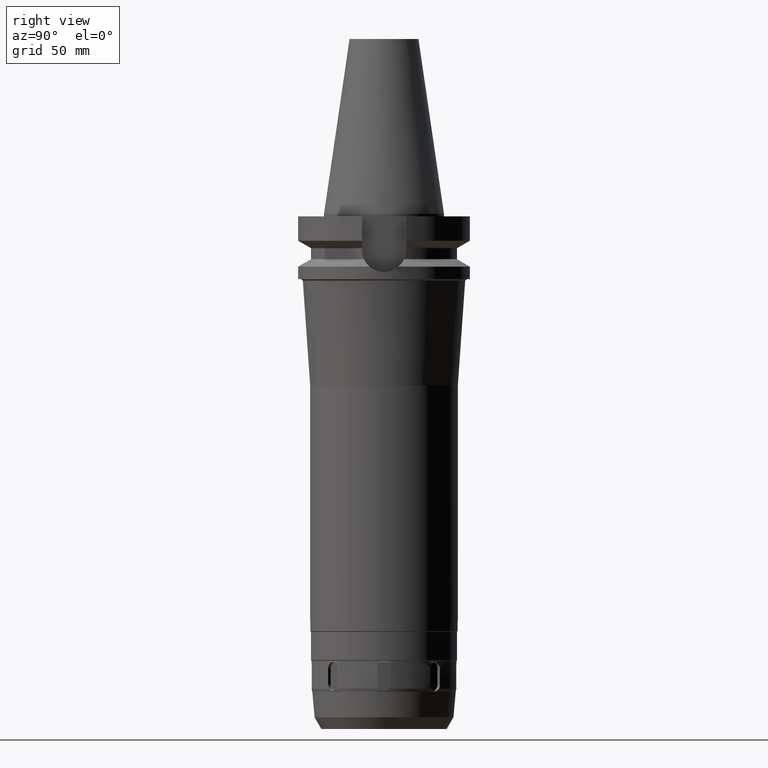
[diagram: clean part render]
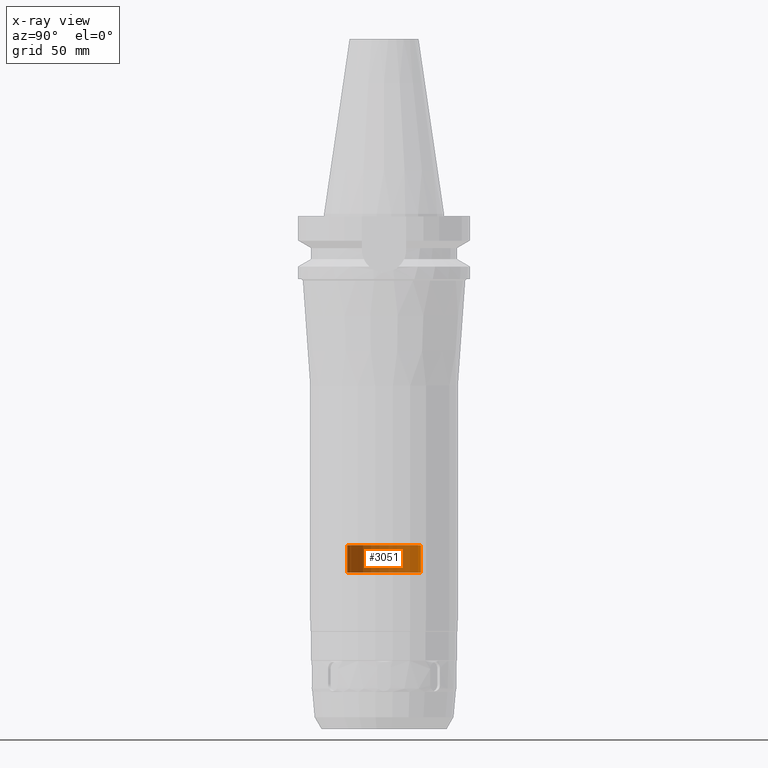
[diagram: x-ray — body ghosted, one internal face saturated and labeled with its STEP entity id]
A machine part, right view, then the same camera in x-ray: the body is ghosted and one INTERNAL B-rep face — a face not visible from any outside direction — is saturated and labeled: STEP entity #3051.
In plain terms, the highlighted cylindrical surface (partial cylindrical patch) has radius 21.5 mm, axis along (0, 0, -1).
Its self-contained STEP definition (entity closure, byte-faithful):
#178=CARTESIAN_POINT('',(0.E0,2.717368782628E-14,-1.93E2));
#179=DIRECTION('',(0.E0,0.E0,1.E0));
#180=DIRECTION('',(0.E0,1.E0,0.E0));
#181=AXIS2_PLACEMENT_3D('',#178,#179,#180);
#202=DIRECTION('',(0.E0,0.E0,1.E0));
#203=VECTOR('',#202,1.6E1);
#204=CARTESIAN_POINT('',(0.E0,2.15E1,-2.09E2));
#205=LINE('',#204,#203);
#209=DIRECTION('',(0.E0,0.E0,1.E0));
#210=VECTOR('',#209,1.6E1);
#211=CARTESIAN_POINT('',(0.E0,-2.15E1,-2.09E2));
#212=LINE('',#211,#210);
#216=CARTESIAN_POINT('',(0.E0,2.717368782628E-14,-2.09E2));
#217=DIRECTION('',(0.E0,0.E0,-1.E0));
#218=DIRECTION('',(0.E0,-1.E0,0.E0));
#219=AXIS2_PLACEMENT_3D('',#216,#217,#218);
#2515=CARTESIAN_POINT('',(0.E0,-2.15E1,-1.93E2));
#2516=CARTESIAN_POINT('',(0.E0,2.15E1,-1.93E2));
#2517=VERTEX_POINT('',#2515);
#2518=VERTEX_POINT('',#2516);
#2519=CARTESIAN_POINT('',(0.E0,2.15E1,-2.09E2));
#2520=VERTEX_POINT('',#2519);
#2521=CARTESIAN_POINT('',(0.E0,-2.15E1,-2.09E2));
#2522=VERTEX_POINT('',#2521);
#3039=CARTESIAN_POINT('',(0.E0,2.717368782628E-14,1.2189E2));
#3040=DIRECTION('',(0.E0,0.E0,-1.E0));
#3041=DIRECTION('',(0.E0,-1.E0,0.E0));
#3042=AXIS2_PLACEMENT_3D('',#3039,#3040,#3041);
#3043=CYLINDRICAL_SURFACE('',#3042,2.15E1);
#3044=ORIENTED_EDGE('',*,*,#3029,.F.);
#3046=ORIENTED_EDGE('',*,*,#3045,.F.);
#3047=ORIENTED_EDGE('',*,*,#3032,.T.);
#3048=ORIENTED_EDGE('',*,*,#3015,.F.);
#3049=EDGE_LOOP('',(#3044,#3046,#3047,#3048));
#3050=FACE_OUTER_BOUND('',#3049,.F.);
#182=CIRCLE('',#181,2.15E1);
#220=CIRCLE('',#219,2.15E1);
#3015=EDGE_CURVE('',#2518,#2517,#182,.T.);
#3029=EDGE_CURVE('',#2520,#2518,#205,.T.);
#3032=EDGE_CURVE('',#2522,#2517,#212,.T.);
#3045=EDGE_CURVE('',#2522,#2520,#220,.T.);
#3051=ADVANCED_FACE('',(#3050),#3043,.F.);